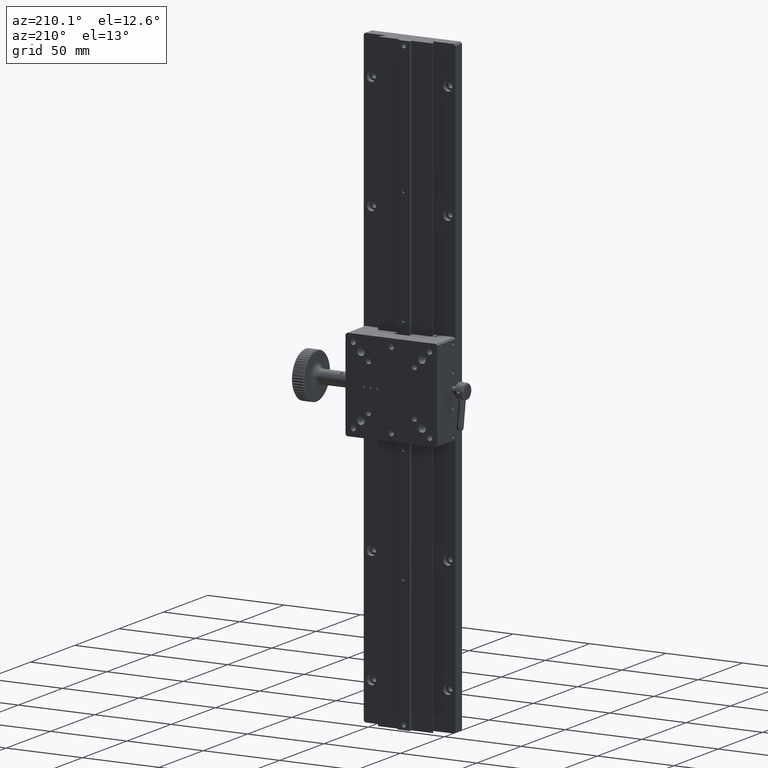
[diagram: clean part render]
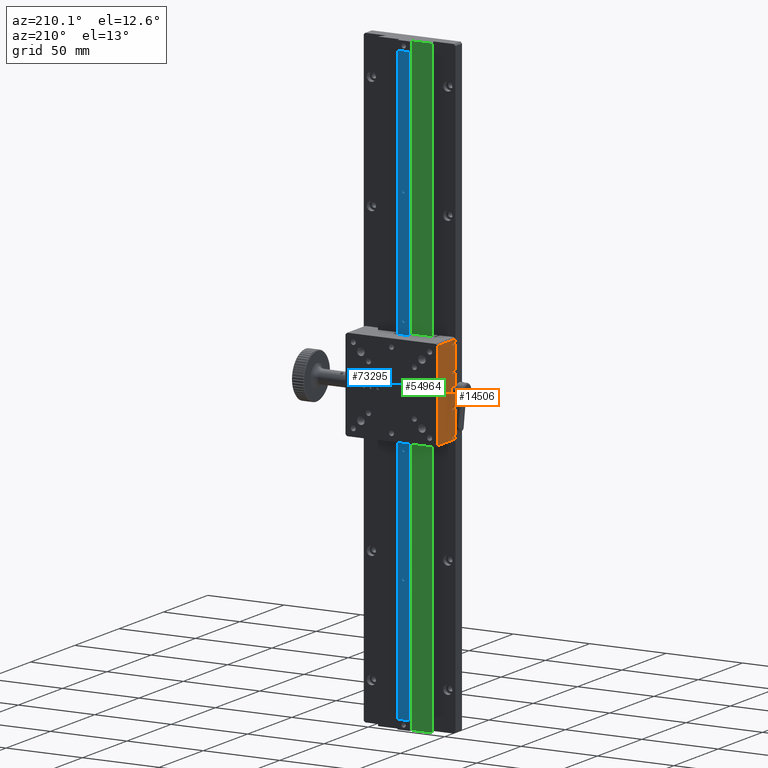
[diagram: same view with three faces highlighted in distinct colors, each labeled with its STEP entity id]
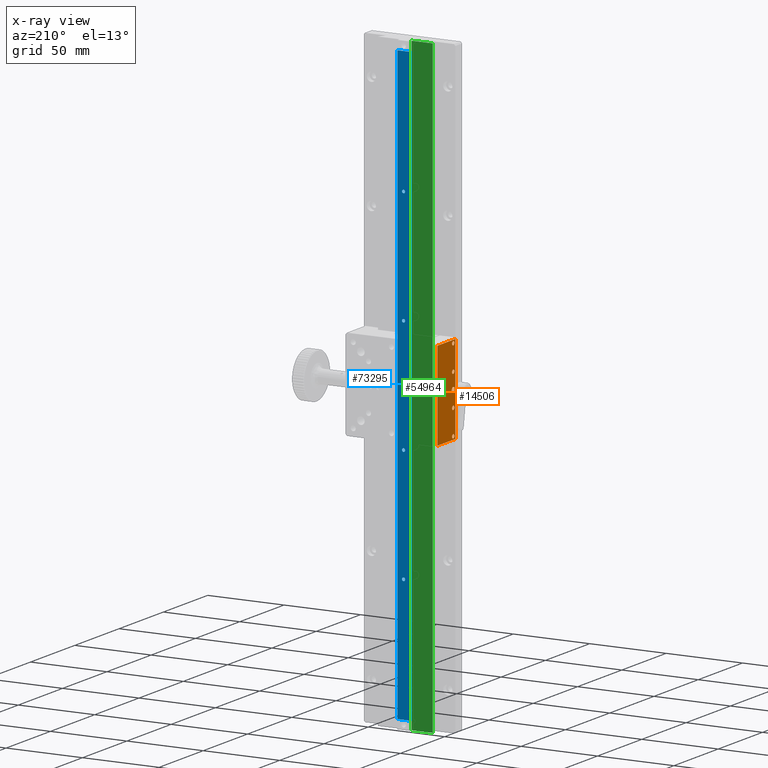
[diagram: x-ray of the same camera — body ghosted, the three highlighted faces saturated]
A machine part, auxiliary view with three faces highlighted in distinct colors.
The next image is the same camera in x-ray (body ghosted, the three faces saturated) — at least one of them is partly hidden behind the body in this view.
Their STEP definitions:

[orange] entity #14506 — the highlighted planar face has unit normal (1, 0, -0).
#678 = EDGE_LOOP ( 'NONE', ( #2407 ) ) ;
#1290 = CARTESIAN_POINT ( 'NONE',  ( 34.50156960995150968, 85.10272800986429331, 184.8231807833472544 ) ) ;
#2002 = AXIS2_PLACEMENT_3D ( 'NONE', #74209, #50299, #18590 ) ;
#2407 = ORIENTED_EDGE ( 'NONE', *, *, #22326, .F. ) ;
#4758 = VERTEX_POINT ( 'NONE', #49315 ) ;
#6584 = CIRCLE ( 'NONE', #94600, 1.250000000000001110 ) ;
#9265 = LINE ( 'NONE', #64369, #18071 ) ;
#9663 = EDGE_CURVE ( 'NONE', #52716, #52716, #44449, .T. ) ;
#10472 = ORIENTED_EDGE ( 'NONE', *, *, #9663, .F. ) ;
#11941 = EDGE_CURVE ( 'NONE', #32992, #4758, #93319, .T. ) ;
#12573 = CARTESIAN_POINT ( 'NONE',  ( 34.50156960995164468, 65.85272800986427910, 186.8231807833472828 ) ) ;
#14506 = ADVANCED_FACE ( 'NONE', ( #35986, #49536, #50552, #57861, #27158, #42740 ), #74480, .F. ) ;
#14701 = DIRECTION ( 'NONE',  ( 5.551115123125777969E-15, -1.000000000000000000, 0.000000000000000000 ) ) ;
#15086 = EDGE_LOOP ( 'NONE', ( #58690 ) ) ;
#15794 = CARTESIAN_POINT ( 'NONE',  ( 34.50156960995165889, 64.60272800986429331, 243.8231807833472828 ) ) ;
#16004 = DIRECTION ( 'NONE',  ( 0.000000000000000000, -0.000000000000000000, -1.000000000000000000 ) ) ;
#16255 = VERTEX_POINT ( 'NONE', #38626 ) ;
#18071 = VECTOR ( 'NONE', #16004, 1000.000000000000000 ) ;
#18590 = DIRECTION ( 'NONE',  ( 8.410780489584597367E-15, -1.000000000000000000, 0.000000000000000000 ) ) ;
#19354 = DIRECTION ( 'NONE',  ( 1.000000000000000000, 7.321445307145155707E-15, -0.000000000000000000 ) ) ;
#20488 = CARTESIAN_POINT ( 'NONE',  ( 34.50156960995164468, 65.85272800986427910, 224.3231807833472828 ) ) ;
#21564 = DIRECTION ( 'NONE',  ( -0.000000000000000000, -0.000000000000000000, -1.000000000000000000 ) ) ;
#22128 = VECTOR ( 'NONE', #59464, 1000.000000000000000 ) ;
#22326 = EDGE_CURVE ( 'NONE', #16255, #16255, #34740, .T. ) ;
#22724 = ORIENTED_EDGE ( 'NONE', *, *, #11941, .F. ) ;
#25665 = DIRECTION ( 'NONE',  ( 5.551115123125777969E-15, -1.000000000000000000, 0.000000000000000000 ) ) ;
#27158 = FACE_OUTER_BOUND ( 'NONE', #96399, .T. ) ;
#29701 = CARTESIAN_POINT ( 'NONE',  ( 34.50156960995164468, 65.85272800986427910, 203.3231807833472544 ) ) ;
#29764 = AXIS2_PLACEMENT_3D ( 'NONE', #33477, #96915, #25665 ) ;
#30783 = EDGE_LOOP ( 'NONE', ( #35770 ) ) ;
#32013 = CIRCLE ( 'NONE', #91799, 1.250000000000001110 ) ;
#32992 = VERTEX_POINT ( 'NONE', #99064 ) ;
#33477 = CARTESIAN_POINT ( 'NONE',  ( 34.50156960995163757, 67.10272800986427910, 240.8231807833473113 ) ) ;
#34740 = CIRCLE ( 'NONE', #29764, 1.250000000000001110 ) ;
#35770 = ORIENTED_EDGE ( 'NONE', *, *, #83385, .F. ) ;
#35986 = FACE_BOUND ( 'NONE', #96201, .T. ) ;
#38467 = DIRECTION ( 'NONE',  ( -7.321445307145155707E-15, 1.000000000000000000, 0.000000000000000000 ) ) ;
#38626 = CARTESIAN_POINT ( 'NONE',  ( 34.50156960995164468, 65.85272800986427910, 240.8231807833473113 ) ) ;
#42153 = ORIENTED_EDGE ( 'NONE', *, *, #75595, .F. ) ;
#42740 = FACE_BOUND ( 'NONE', #30783, .T. ) ;
#43323 = AXIS2_PLACEMENT_3D ( 'NONE', #58879, #19354, #89590 ) ;
#44449 = CIRCLE ( 'NONE', #95990, 1.250000000000001110 ) ;
#45132 = CIRCLE ( 'NONE', #2002, 1.649999999999984812 ) ;
#46268 = VECTOR ( 'NONE', #21564, 1000.000000000000000 ) ;
#49315 = CARTESIAN_POINT ( 'NONE',  ( 34.50156960995163757, 64.60272800986429331, 184.8231807833472828 ) ) ;
#49536 = FACE_BOUND ( 'NONE', #66970, .T. ) ;
#50299 = DIRECTION ( 'NONE',  ( -1.000000000000000000, -6.982962677686266711E-15, 0.000000000000000000 ) ) ;
#50347 = ORIENTED_EDGE ( 'NONE', *, *, #74250, .F. ) ;
#50473 = EDGE_CURVE ( 'NONE', #83177, #73895, #9265, .T. ) ;
#50552 = FACE_BOUND ( 'NONE', #15086, .T. ) ;
#51049 = VERTEX_POINT ( 'NONE', #12573 ) ;
#52716 = VERTEX_POINT ( 'NONE', #20488 ) ;
#53260 = EDGE_CURVE ( 'NONE', #51049, #51049, #6584, .T. ) ;
#54116 = VERTEX_POINT ( 'NONE', #29701 ) ;
#56347 = ORIENTED_EDGE ( 'NONE', *, *, #69788, .F. ) ;
#57861 = FACE_BOUND ( 'NONE', #678, .T. ) ;
#58690 = ORIENTED_EDGE ( 'NONE', *, *, #53260, .F. ) ;
#58879 = CARTESIAN_POINT ( 'NONE',  ( 34.50156960995165889, 64.60272800986429331, 243.8231807833472828 ) ) ;
#59464 = DIRECTION ( 'NONE',  ( 7.321445307145155707E-15, -1.000000000000000000, -0.000000000000000000 ) ) ;
#60334 = DIRECTION ( 'NONE',  ( 5.551115123125777969E-15, -1.000000000000000000, 0.000000000000000000 ) ) ;
#60355 = VECTOR ( 'NONE', #38467, 1000.000000000000000 ) ;
#61804 = CARTESIAN_POINT ( 'NONE',  ( 34.50156960995163757, 67.10272800986427910, 186.8231807833472828 ) ) ;
#64369 = CARTESIAN_POINT ( 'NONE',  ( 34.50156960995151678, 85.10272800986427910, 243.8231807833472828 ) ) ;
#66970 = EDGE_LOOP ( 'NONE', ( #10472 ) ) ;
#68797 = CARTESIAN_POINT ( 'NONE',  ( 34.50156960995163757, 67.10272800986427910, 203.3231807833472544 ) ) ;
#69214 = CARTESIAN_POINT ( 'NONE',  ( 34.50156960995151678, 85.10272800986429331, 242.8231807833472828 ) ) ;
#69788 = EDGE_CURVE ( 'NONE', #54116, #54116, #32013, .T. ) ;
#73895 = VERTEX_POINT ( 'NONE', #1290 ) ;
#74209 = CARTESIAN_POINT ( 'NONE',  ( 34.50156960995163757, 67.10272800986427910, 213.8231807833472828 ) ) ;
#74250 = EDGE_CURVE ( 'NONE', #83177, #32992, #91200, .T. ) ;
#74480 = PLANE ( 'NONE',  #43323 ) ;
#75595 = EDGE_CURVE ( 'NONE', #4758, #73895, #79549, .T. ) ;
#76959 = CARTESIAN_POINT ( 'NONE',  ( 34.50156960995163757, 67.10272800986427910, 224.3231807833472828 ) ) ;
#79317 = DIRECTION ( 'NONE',  ( 5.551115123125777969E-15, -1.000000000000000000, 0.000000000000000000 ) ) ;
#79549 = LINE ( 'NONE', #86837, #60355 ) ;
#83111 = CARTESIAN_POINT ( 'NONE',  ( 34.50156960995165178, 65.45272800986428763, 213.8231807833472828 ) ) ;
#83177 = VERTEX_POINT ( 'NONE', #69214 ) ;
#83385 = EDGE_CURVE ( 'NONE', #84657, #84657, #45132, .T. ) ;
#84657 = VERTEX_POINT ( 'NONE', #83111 ) ;
#85430 = DIRECTION ( 'NONE',  ( -1.000000000000000000, -6.982962677686266711E-15, 0.000000000000000000 ) ) ;
#86837 = CARTESIAN_POINT ( 'NONE',  ( 34.50156960995165889, 64.60272800986429331, 184.8231807833472544 ) ) ;
#87125 = DIRECTION ( 'NONE',  ( -1.000000000000000000, -6.982962677686266711E-15, 0.000000000000000000 ) ) ;
#88237 = ORIENTED_EDGE ( 'NONE', *, *, #50473, .T. ) ;
#89590 = DIRECTION ( 'NONE',  ( -7.321445307145155707E-15, 1.000000000000000000, 0.000000000000000000 ) ) ;
#91200 = LINE ( 'NONE', #92711, #22128 ) ;
#91799 = AXIS2_PLACEMENT_3D ( 'NONE', #68797, #85430, #14701 ) ;
#92711 = CARTESIAN_POINT ( 'NONE',  ( 34.50156960995165889, 64.60272800986429331, 242.8231807833472828 ) ) ;
#93319 = LINE ( 'NONE', #15794, #46268 ) ;
#94600 = AXIS2_PLACEMENT_3D ( 'NONE', #61804, #87125, #79317 ) ;
#95990 = AXIS2_PLACEMENT_3D ( 'NONE', #76959, #101916, #60334 ) ;
#96201 = EDGE_LOOP ( 'NONE', ( #56347 ) ) ;
#96399 = EDGE_LOOP ( 'NONE', ( #42153, #22724, #50347, #88237 ) ) ;
#96915 = DIRECTION ( 'NONE',  ( -1.000000000000000000, -6.982962677686266711E-15, 0.000000000000000000 ) ) ;
#99064 = CARTESIAN_POINT ( 'NONE',  ( 34.50156960995162336, 64.60272800986429331, 242.8231807833472544 ) ) ;
#101916 = DIRECTION ( 'NONE',  ( -1.000000000000000000, -6.982962677686266711E-15, 0.000000000000000000 ) ) ;

[blue] entity #73295 — the highlighted planar face has unit normal (0, -1, 0).
#1957 = FACE_BOUND ( 'NONE', #8480, .T. ) ;
#2941 = CARTESIAN_POINT ( 'NONE',  ( 68.50156960994898725, 71.37772800986743960, 413.8231807833470270 ) ) ;
#7590 = CARTESIAN_POINT ( 'NONE',  ( 68.50156960994762301, 71.37772800986743960, 19.82318078334700928 ) ) ;
#7659 = EDGE_CURVE ( 'NONE', #25493, #84445, #30266, .T. ) ;
#8480 = EDGE_LOOP ( 'NONE', ( #99365 ) ) ;
#8998 = VERTEX_POINT ( 'NONE', #17296 ) ;
#9096 = ORIENTED_EDGE ( 'NONE', *, *, #89743, .F. ) ;
#9227 = FACE_OUTER_BOUND ( 'NONE', #13310, .T. ) ;
#10238 = FACE_BOUND ( 'NONE', #16071, .T. ) ;
#11067 = DIRECTION ( 'NONE',  ( 1.000000000000000000, 0.000000000000000000, 0.000000000000000000 ) ) ;
#13012 = VECTOR ( 'NONE', #11067, 1000.000000000000000 ) ;
#13310 = EDGE_LOOP ( 'NONE', ( #9096, #79912, #85659, #66744 ) ) ;
#15365 = DIRECTION ( 'NONE',  ( 0.000000000000000000, -1.000000000000000000, 0.000000000000000000 ) ) ;
#15470 = DIRECTION ( 'NONE',  ( -1.000000000000000000, -0.000000000000000000, -0.000000000000000000 ) ) ;
#16071 = EDGE_LOOP ( 'NONE', ( #25683 ) ) ;
#16486 = DIRECTION ( 'NONE',  ( 0.000000000000000000, -0.000000000000000000, -1.000000000000000000 ) ) ;
#17296 = CARTESIAN_POINT ( 'NONE',  ( 64.50156960994837618, 71.37772800986743960, 250.2981807833470214 ) ) ;
#21037 = AXIS2_PLACEMENT_3D ( 'NONE', #76470, #28121, #30154 ) ;
#22001 = EDGE_CURVE ( 'NONE', #47437, #47437, #51299, .T. ) ;
#22012 = CARTESIAN_POINT ( 'NONE',  ( 64.50156960994786459, 71.37772800986743960, 100.2981807833470640 ) ) ;
#23788 = LINE ( 'NONE', #86726, #67685 ) ;
#24631 = DIRECTION ( 'NONE',  ( 0.000000000000000000, 0.000000000000000000, -1.000000000000000000 ) ) ;
#25327 = DIRECTION ( 'NONE',  ( 0.000000000000000000, -1.000000000000000000, 0.000000000000000000 ) ) ;
#25493 = VERTEX_POINT ( 'NONE', #95754 ) ;
#25683 = ORIENTED_EDGE ( 'NONE', *, *, #22001, .T. ) ;
#26840 = EDGE_CURVE ( 'NONE', #86991, #86991, #68078, .T. ) ;
#28121 = DIRECTION ( 'NONE',  ( 0.000000000000000000, -1.000000000000000000, 0.000000000000000000 ) ) ;
#30154 = DIRECTION ( 'NONE',  ( 0.000000000000000000, 0.000000000000000000, -1.000000000000000000 ) ) ;
#30266 = LINE ( 'NONE', #94213, #62631 ) ;
#31883 = DIRECTION ( 'NONE',  ( 0.000000000000000000, -1.000000000000000000, 0.000000000000000000 ) ) ;
#32601 = FACE_BOUND ( 'NONE', #93254, .T. ) ;
#33969 = CARTESIAN_POINT ( 'NONE',  ( 68.50156960994898725, 71.37772800986743960, 19.82318078334704836 ) ) ;
#33982 = CARTESIAN_POINT ( 'NONE',  ( 64.50156960994813460, 71.37772800986743960, 176.3231807833470270 ) ) ;
#34129 = DIRECTION ( 'NONE',  ( 3.491481338843133355E-15, -0.000000000000000000, 1.000000000000000000 ) ) ;
#37487 = CARTESIAN_POINT ( 'NONE',  ( 64.50156960994864619, 71.37772800986743960, 325.2981807833470498 ) ) ;
#38443 = EDGE_LOOP ( 'NONE', ( #99424 ) ) ;
#39415 = EDGE_CURVE ( 'NONE', #8998, #8998, #56133, .T. ) ;
#40447 = CARTESIAN_POINT ( 'NONE',  ( 68.50156960994863198, 71.37772800986743960, 407.8231807833471407 ) ) ;
#42266 = EDGE_CURVE ( 'NONE', #25493, #43694, #82827, .T. ) ;
#43694 = VERTEX_POINT ( 'NONE', #7590 ) ;
#47129 = VECTOR ( 'NONE', #34129, 1000.000000000000000 ) ;
#47437 = VERTEX_POINT ( 'NONE', #78168 ) ;
#48190 = FACE_BOUND ( 'NONE', #38443, .T. ) ;
#51299 = CIRCLE ( 'NONE', #71253, 1.024999999999998135 ) ;
#54886 = CARTESIAN_POINT ( 'NONE',  ( 64.50156960994786459, 71.37772800986743960, 101.3231807833470697 ) ) ;
#56133 = CIRCLE ( 'NONE', #69409, 1.024999999999998135 ) ;
#59054 = ORIENTED_EDGE ( 'NONE', *, *, #26840, .T. ) ;
#61933 = VERTEX_POINT ( 'NONE', #37487 ) ;
#62631 = VECTOR ( 'NONE', #92684, 1000.000000000000000 ) ;
#63582 = EDGE_CURVE ( 'NONE', #61933, #61933, #75816, .T. ) ;
#65697 = DIRECTION ( 'NONE',  ( 0.000000000000000000, -1.000000000000000000, 0.000000000000000000 ) ) ;
#66744 = ORIENTED_EDGE ( 'NONE', *, *, #7659, .T. ) ;
#67685 = VECTOR ( 'NONE', #15470, 1000.000000000000000 ) ;
#68078 = CIRCLE ( 'NONE', #101354, 1.024999999999998135 ) ;
#69409 = AXIS2_PLACEMENT_3D ( 'NONE', #102120, #31883, #80755 ) ;
#71253 = AXIS2_PLACEMENT_3D ( 'NONE', #33982, #65697, #24631 ) ;
#72543 = DIRECTION ( 'NONE',  ( 0.000000000000000000, 0.000000000000000000, -1.000000000000000000 ) ) ;
#73295 = ADVANCED_FACE ( 'NONE', ( #9227, #48190, #1957, #10238, #32601 ), #95533, .F. ) ;
#73590 = AXIS2_PLACEMENT_3D ( 'NONE', #88258, #25327, #16486 ) ;
#75816 = CIRCLE ( 'NONE', #21037, 1.024999999999998135 ) ;
#76470 = CARTESIAN_POINT ( 'NONE',  ( 64.50156960994864619, 71.37772800986743960, 326.3231807833470270 ) ) ;
#78168 = CARTESIAN_POINT ( 'NONE',  ( 64.50156960994813460, 71.37772800986743960, 175.2981807833470214 ) ) ;
#79553 = EDGE_CURVE ( 'NONE', #43694, #82985, #80955, .T. ) ;
#79912 = ORIENTED_EDGE ( 'NONE', *, *, #79553, .F. ) ;
#80755 = DIRECTION ( 'NONE',  ( 0.000000000000000000, 0.000000000000000000, -1.000000000000000000 ) ) ;
#80955 = LINE ( 'NONE', #2941, #47129 ) ;
#82827 = LINE ( 'NONE', #33969, #13012 ) ;
#82985 = VERTEX_POINT ( 'NONE', #40447 ) ;
#84445 = VERTEX_POINT ( 'NONE', #95466 ) ;
#85659 = ORIENTED_EDGE ( 'NONE', *, *, #42266, .F. ) ;
#86726 = CARTESIAN_POINT ( 'NONE',  ( 68.50156960994898725, 71.37772800986743960, 407.8231807833471407 ) ) ;
#86991 = VERTEX_POINT ( 'NONE', #22012 ) ;
#88258 = CARTESIAN_POINT ( 'NONE',  ( 68.50156960994898725, 71.37772800986743960, 413.8231807833470270 ) ) ;
#89743 = EDGE_CURVE ( 'NONE', #82985, #84445, #23788, .T. ) ;
#92684 = DIRECTION ( 'NONE',  ( 3.491481338843133355E-15, -0.000000000000000000, 1.000000000000000000 ) ) ;
#93254 = EDGE_LOOP ( 'NONE', ( #59054 ) ) ;
#94213 = CARTESIAN_POINT ( 'NONE',  ( 60.50156960994900857, 71.37772800986743960, 413.8231807833470839 ) ) ;
#95466 = CARTESIAN_POINT ( 'NONE',  ( 60.50156960994898725, 71.37772800986743960, 407.8231807833471407 ) ) ;
#95533 = PLANE ( 'NONE',  #73590 ) ;
#95754 = CARTESIAN_POINT ( 'NONE',  ( 60.50156960994796407, 71.37772800986743960, 19.82318078334703415 ) ) ;
#99365 = ORIENTED_EDGE ( 'NONE', *, *, #39415, .T. ) ;
#99424 = ORIENTED_EDGE ( 'NONE', *, *, #63582, .T. ) ;
#101354 = AXIS2_PLACEMENT_3D ( 'NONE', #54886, #15365, #72543 ) ;
#102120 = CARTESIAN_POINT ( 'NONE',  ( 64.50156960994837618, 71.37772800986743960, 251.3231807833470270 ) ) ;

[green] entity #54964 — the highlighted planar face has unit normal (0, -1, 0).
#1143 = EDGE_CURVE ( 'NONE', #65314, #41020, #11615, .T. ) ;
#1596 = CARTESIAN_POINT ( 'NONE',  ( 64.50156960994755195, 69.30272800986759307, 413.8231807833473681 ) ) ;
#1738 = FACE_OUTER_BOUND ( 'NONE', #52163, .T. ) ;
#4705 = LINE ( 'NONE', #29104, #68281 ) ;
#10529 = DIRECTION ( 'NONE',  ( 7.227918770390267180E-15, -1.000000000000000000, 0.000000000000000000 ) ) ;
#11615 = LINE ( 'NONE', #12125, #101265 ) ;
#12125 = CARTESIAN_POINT ( 'NONE',  ( 64.50156960994755195, 69.30272800986759307, 13.82318078334728284 ) ) ;
#17160 = CARTESIAN_POINT ( 'NONE',  ( 46.58802334475602436, 69.30272800986759307, 413.8231807833473681 ) ) ;
#17685 = EDGE_CURVE ( 'NONE', #73117, #41020, #4705, .T. ) ;
#22079 = CARTESIAN_POINT ( 'NONE',  ( 46.58802334475602436, 69.30272800986759307, 13.82318078334727751 ) ) ;
#25480 = DIRECTION ( 'NONE',  ( 1.000000000000000000, -0.000000000000000000, 0.000000000000000000 ) ) ;
#25984 = CARTESIAN_POINT ( 'NONE',  ( 46.58802334475602436, 69.30272800986757886, 413.8231807833473681 ) ) ;
#29104 = CARTESIAN_POINT ( 'NONE',  ( 60.45156960994744111, 69.30272800986766413, 413.8231807833473681 ) ) ;
#29301 = ORIENTED_EDGE ( 'NONE', *, *, #48790, .T. ) ;
#31867 = PLANE ( 'NONE',  #88867 ) ;
#37711 = ORIENTED_EDGE ( 'NONE', *, *, #49480, .F. ) ;
#41020 = VERTEX_POINT ( 'NONE', #91788 ) ;
#48790 = EDGE_CURVE ( 'NONE', #51933, #73117, #72804, .T. ) ;
#49480 = EDGE_CURVE ( 'NONE', #51933, #65314, #97237, .T. ) ;
#51933 = VERTEX_POINT ( 'NONE', #17160 ) ;
#52163 = EDGE_LOOP ( 'NONE', ( #37711, #29301, #65496, #89620 ) ) ;
#54964 = ADVANCED_FACE ( 'NONE', ( #1738 ), #31867, .F. ) ;
#56004 = CARTESIAN_POINT ( 'NONE',  ( 60.45156960994744111, 69.30272800986763571, 413.8231807833473681 ) ) ;
#57708 = DIRECTION ( 'NONE',  ( 0.000000000000000000, -0.000000000000000000, -1.000000000000000000 ) ) ;
#60957 = DIRECTION ( 'NONE',  ( 1.000000000000000000, -0.000000000000000000, 0.000000000000000000 ) ) ;
#61200 = VECTOR ( 'NONE', #25480, 1000.000000000000000 ) ;
#62892 = VECTOR ( 'NONE', #57708, 1000.000000000000000 ) ;
#64626 = DIRECTION ( 'NONE',  ( 1.000000000000000000, 7.227918770390267180E-15, 0.000000000000000000 ) ) ;
#65314 = VERTEX_POINT ( 'NONE', #22079 ) ;
#65496 = ORIENTED_EDGE ( 'NONE', *, *, #17685, .T. ) ;
#68281 = VECTOR ( 'NONE', #99864, 1000.000000000000000 ) ;
#72804 = LINE ( 'NONE', #1596, #61200 ) ;
#73117 = VERTEX_POINT ( 'NONE', #56004 ) ;
#88867 = AXIS2_PLACEMENT_3D ( 'NONE', #96866, #10529, #64626 ) ;
#89620 = ORIENTED_EDGE ( 'NONE', *, *, #1143, .F. ) ;
#91788 = CARTESIAN_POINT ( 'NONE',  ( 60.45156960994744111, 69.30272800986763571, 13.82318078334727041 ) ) ;
#96866 = CARTESIAN_POINT ( 'NONE',  ( 46.28802334475611246, 69.30272800986757886, 413.8231807833473681 ) ) ;
#97237 = LINE ( 'NONE', #25984, #62892 ) ;
#99864 = DIRECTION ( 'NONE',  ( -0.000000000000000000, -0.000000000000000000, -1.000000000000000000 ) ) ;
#101265 = VECTOR ( 'NONE', #60957, 1000.000000000000000 ) ;